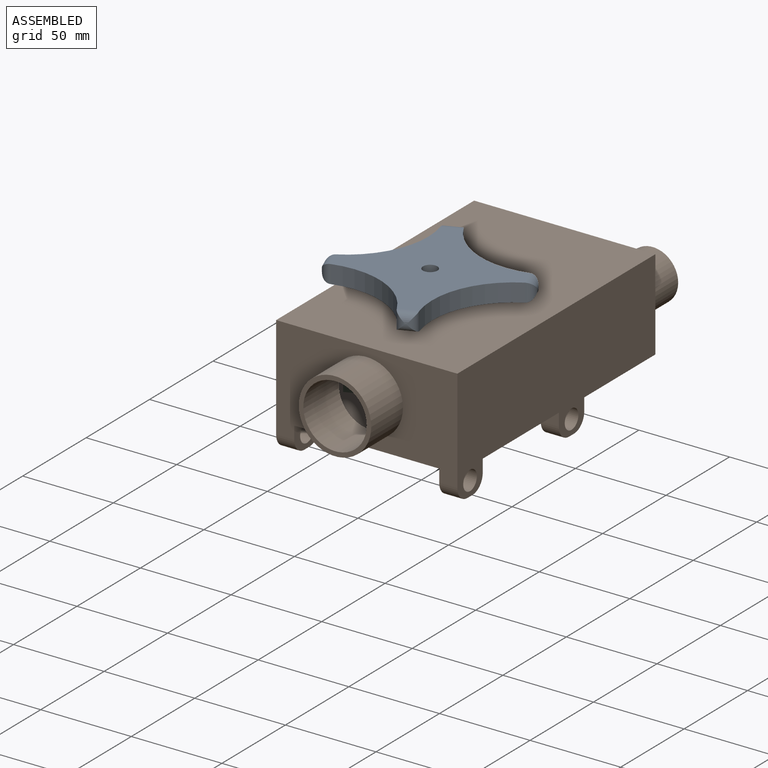
[diagram: assembled view]
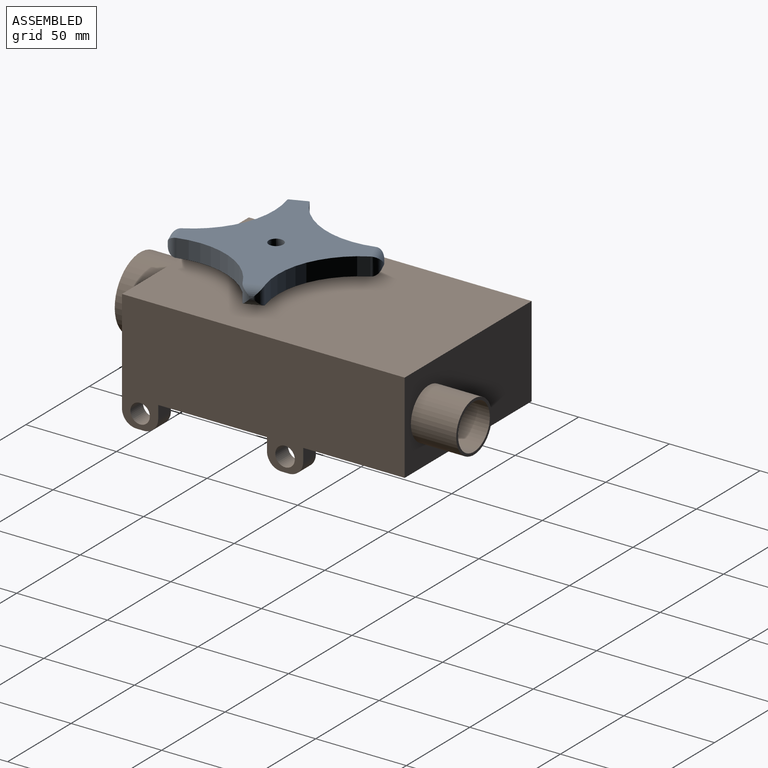
[diagram: assembled view, second angle]
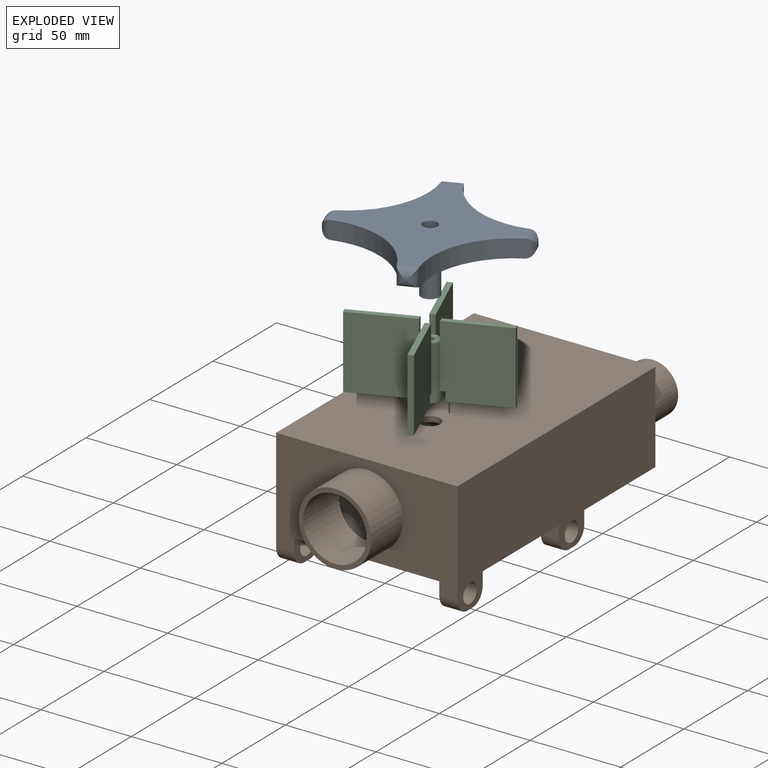
[diagram: exploded view]
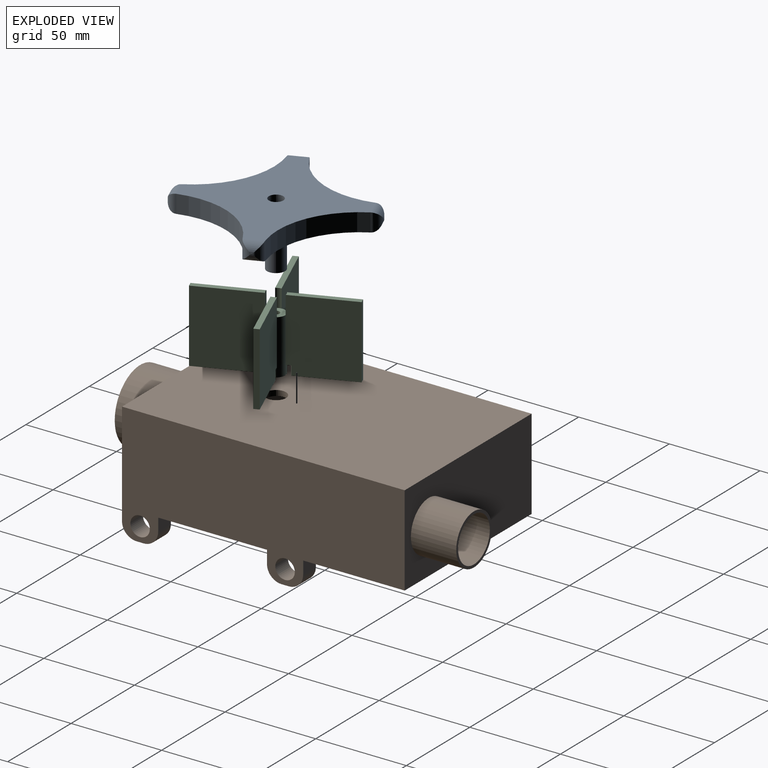
[diagram: exploded view, second angle]
ASSEMBLY  parts=3 mates=2
PART A: 23 faces, bbox 100x100x35 mm
  f0: plane 90x90mm, normal (0,0,-1), area 3356mm2, adj f1,f2,f3,f4,f10,f13,f16,f19
  f1: cylinder r=45mm len=40.27mm, axis (0,0,-1), area 616.7mm2, adj f0,f5,f10,f11,f13,f14
  f2: cylinder r=45mm len=40.27mm, axis (0,0,-1), area 616.7mm2, adj f0,f5,f12,f13,f16,f17
  f3: cylinder r=45mm len=40.27mm, axis (0,0,-1), area 616.7mm2, adj f0,f5,f15,f16,f19,f20
  f4: cylinder r=45mm len=40.27mm, axis (0,0,-1), area 616.7mm2, adj f0,f5,f9,f10,f18,f19
  f5: plane 90x90mm, normal (0,0,1), area 3384.3mm2, adj f1,f2,f3,f4,f7,f10,f13,f16
  f6: cylinder r=2mm len=30mm, axis (0,0,1), area 377mm2, adj f8,f22
  f7: cylinder r=4mm len=8mm, axis (0,0,1), area 125.7mm2, adj f5,f8
  f8: plane 8x8mm, normal (0,0,1), area 37.7mm2, adj f6,f7
  f9: cylinder r=5mm len=9.95mm, axis (0,0,-1), area 45mm2, adj f4,f10
  f10: cylinder r=5mm len=10.56mm, axis (1,0,0), area 107.9mm2, adj f0,f1,f4,f5,f9,f11
  f11: cylinder r=5mm len=9.95mm, axis (0,0,-1), area 45mm2, adj f1,f10
  f12: cylinder r=5mm len=9.95mm, axis (0,0,-1), area 45mm2, adj f2,f13
  f13: cylinder r=5mm len=10.56mm, axis (0,1,0), area 107.9mm2, adj f0,f1,f2,f5,f12,f14
  f14: cylinder r=5mm len=9.95mm, axis (0,0,-1), area 45mm2, adj f1,f13
  f15: cylinder r=5mm len=9.95mm, axis (0,0,-1), area 45mm2, adj f3,f16
  f16: cylinder r=5mm len=10.56mm, axis (-1,0,0), area 107.9mm2, adj f0,f2,f3,f5,f15,f17
  f17: cylinder r=5mm len=9.95mm, axis (0,0,-1), area 45mm2, adj f2,f16
  f18: cylinder r=5mm len=9.95mm, axis (0,0,-1), area 45mm2, adj f4,f19
  f19: cylinder r=5mm len=10.56mm, axis (0,-1,0), area 107.9mm2, adj f0,f3,f4,f5,f18,f20
  f20: cylinder r=5mm len=9.95mm, axis (0,0,-1), area 45mm2, adj f3,f19
  f21: cylinder r=5mm len=25mm, axis (0,0,1), area 785.4mm2, adj f0,f22
  f22: plane 10x10mm, normal (0,0,-1), area 66mm2, adj f6,f21
PART B: 58 faces, bbox 100x206x65 mm
  f0: plane 75.5x44mm, normal (1,0,0), area 3322mm2, adj f1,f2,f10,f56
  f1: plane 97x94mm, normal (0,0,-1), area 8833.1mm2, adj f0,f10,f11,f13,f43,f56,f57
  f2: plane 97x94mm, normal (0,0,1), area 8774.2mm2, adj f0,f10,f11,f41,f43,f56,f57
  f3: plane 10x7mm, normal (0,1,0), area 70mm2, adj f7,f9,f17,f39
  f4: plane 10x7mm, normal (0,1,0), area 70mm2, adj f5,f9,f20,f38
  f5: plane 156x65mm, normal (-1,0,0), area 8163.7mm2, adj f4,f6,f8,f9,f21,f22,f24,f25
  f6: plane 100x57mm, normal (0,-1,0), area 3883.4mm2, adj f5,f7,f8,f9,f15,f23,f26,f34
  f7: plane 156x65mm, normal (1,0,0), area 8163.7mm2, adj f3,f6,f8,f9,f18,f19,f27,f28
  f8: plane 156x100mm, normal (0,0,1), area 15505mm2, adj f5,f6,f7,f13,f51
  f9: plane 156x100mm, normal (0,0,-1), area 14705mm2, adj f3,f4,f5,f6,f7,f12,f17,f18
  f10: plane 94x44mm, normal (0,1,0), area 3173.9mm2, adj f0,f1,f2,f11,f14
  f11: plane 97x44mm, normal (-1,0,0), area 4268mm2, adj f1,f2,f10,f43
  f12: cylinder r=5.5mm len=11mm, axis (0,0,1), area 207.3mm2, adj f9,f42
  f13: cylinder r=5.5mm len=11mm, axis (0,0,1), area 103.7mm2, adj f1,f8
  f14: cylinder r=17.5mm len=35mm, axis (0,1,0), area 3078.8mm2, adj f10,f16
  f15: cylinder r=20mm len=40mm, axis (0,1,0), area 3141.6mm2, adj f6,f16
  f16: plane 40x40mm, normal (0,-1,0), area 294.5mm2, adj f14,f15
  f17: plane 20x15mm, normal (-1,0,0), area 181.8mm2, adj f3,f9,f18,f19,f32,f39,f40
  f18: plane 10x7mm, normal (0,-1,0), area 70mm2, adj f7,f9,f17,f40
  f19: plane 10x4mm, normal (0,0,-1), area 40mm2, adj f7,f17,f39,f40
  f20: plane 20x15mm, normal (1,0,0), area 181.8mm2, adj f4,f9,f21,f22,f31,f37,f38
  f21: plane 10x7mm, normal (0,-1,0), area 70mm2, adj f5,f9,f20,f37
  f22: plane 10x4mm, normal (0,0,-1), area 40mm2, adj f5,f20,f37,f38
  f23: plane 20x15mm, normal (1,0,0), area 181.8mm2, adj f6,f9,f24,f25,f30,f35,f36
  f24: plane 10x7mm, normal (0,1,0), area 70mm2, adj f5,f9,f23,f36
  f25: plane 10x4mm, normal (0,0,-1), area 40mm2, adj f5,f23,f35,f36
  f26: plane 20x15mm, normal (-1,0,0), area 181.8mm2, adj f6,f9,f27,f28,f29,f33,f34
  f27: plane 10x7mm, normal (0,1,0), area 70mm2, adj f7,f9,f26,f33
  f28: plane 10x4mm, normal (0,0,-1), area 40mm2, adj f7,f26,f33,f34
  f29: cylinder r=5.37mm len=10.75mm, axis (1,0,0), area 337.6mm2, adj f7,f26
  f30: cylinder r=5.37mm len=10.75mm, axis (1,0,0), area 337.6mm2, adj f5,f23
  f31: cylinder r=5.37mm len=10.75mm, axis (1,0,0), area 337.6mm2, adj f5,f20
  f32: cylinder r=5.37mm len=10.75mm, axis (1,0,0), area 337.6mm2, adj f7,f17
  f33: cylinder r=8mm len=10mm, axis (-1,0,0), area 125.7mm2, adj f7,f26,f27,f28
  f34: cylinder r=8mm len=10mm, axis (-1,0,0), area 125.7mm2, adj f6,f7,f26,f28
  f35: cylinder r=8mm len=10mm, axis (-1,0,0), area 125.7mm2, adj f5,f6,f23,f25
  f36: cylinder r=8mm len=10mm, axis (-1,0,0), area 125.7mm2, adj f5,f23,f24,f25
  f37: cylinder r=8mm len=10mm, axis (1,0,0), area 125.7mm2, adj f5,f20,f21,f22
  f38: cylinder r=8mm len=10mm, axis (1,0,0), area 125.7mm2, adj f4,f5,f20,f22
  f39: cylinder r=8mm len=10mm, axis (1,0,0), area 125.7mm2, adj f3,f7,f17,f19
  f40: cylinder r=8mm len=10mm, axis (1,0,0), area 125.7mm2, adj f7,f17,f18,f19
  f41: cylinder r=7mm len=14mm, axis (0,0,-1), area 131.9mm2, adj f2,f42
  f42: plane 14x14mm, normal (0,0,1), area 58.9mm2, adj f12,f41
  f43: plane 88.79x44mm, normal (0,-1,0), area 3420mm2, adj f1,f2,f11,f49,f57
  f44: plane 49.2x44mm, normal (1,0,0), area 2164.6mm2, adj f45,f47,f48,f50
  f45: plane 94x49.2mm, normal (0,0,1), area 3440.6mm2, adj f44,f46,f48,f50
  f46: plane 44x24.01mm, normal (-1,0,0), area 1056.4mm2, adj f45,f47,f48,f50
  f47: plane 94x49.2mm, normal (0,0,-1), area 3440.6mm2, adj f44,f46,f48,f50
  f48: plane 94x44mm, normal (-0.26,0.97,0), area 3773.7mm2, adj f44,f45,f46,f47,f49
  f49: cylinder r=12.5mm len=25mm, axis (0,1,0), area 656.5mm2, adj f43,f48,f55
  f50: plane 94x44mm, normal (0,-1,0), area 3645.1mm2, adj f44,f45,f46,f47,f52
  f51: plane 100x50mm, normal (0,1,0), area 4384.2mm2, adj f5,f7,f8,f9,f53
  f52: cylinder r=12.5mm len=28mm, axis (0,-1,0), area 2199.1mm2, adj f50,f54
  f53: cylinder r=14mm len=28mm, axis (0,-1,0), area 2199.1mm2, adj f51,f54
  f54: plane 28x28mm, normal (0,1,0), area 124.9mm2, adj f52,f53
  f55: plane 8.28x0.71mm, normal (0,1,0), area 3.9mm2, adj f49,f57
  f56: plane 44x12.46mm, normal (0,-1,0), area 548.2mm2, adj f0,f1,f2,f57
  f57: plane 44x21.5mm, normal (0.95,0.32,0), area 998.4mm2, adj f1,f2,f43,f55,f56
PART C: 36 faces, bbox 80x80x40 mm
  f0: plane 32.65x3mm, normal (0,0,-1), area 97.7mm2, adj f17,f18,f19,f31
  f1: plane 32.65x3mm, normal (0,0,-1), area 97.7mm2, adj f12,f13,f14,f33
  f2: plane 32.65x3mm, normal (0,0,-1), area 97.7mm2, adj f5,f7,f8,f34
  f3: plane 32.65x3mm, normal (0,0,-1), area 97.7mm2, adj f21,f23,f24,f29
  f4: plane 10x10mm, normal (0,0,-1), area 66mm2, adj f10,f27
  f5: plane 40x35.23mm, normal (-1,0,0), area 1396.3mm2, adj f2,f6,f8,f9,f10,f34,f35
  f6: cylinder r=5mm len=10mm, axis (0,0,-1), area 30.5mm2, adj f5,f7,f9,f26
  f7: plane 40x35.23mm, normal (1,0,0), area 1396.3mm2, adj f2,f6,f8,f9,f10,f34,f35
  f8: plane 40x3mm, normal (0,1,0), area 120mm2, adj f2,f5,f7,f9
  f9: plane 35.23x3mm, normal (0,0,1), area 105.2mm2, adj f5,f6,f7,f8
  f10: cylinder r=5mm len=30mm, axis (0,0,-1), area 637.8mm2, adj f4,f5,f7,f12,f14,f17,f19,f21
  f11: cylinder r=5mm len=10mm, axis (0,0,-1), area 30.5mm2, adj f12,f14,f15,f26
  f12: plane 40x35.23mm, normal (0,1,0), area 1396.3mm2, adj f1,f10,f11,f13,f15,f32,f33
  f13: plane 40x3mm, normal (-1,0,0), area 120mm2, adj f1,f12,f14,f15
  f14: plane 40x35.23mm, normal (0,-1,0), area 1396.3mm2, adj f1,f10,f11,f13,f15,f32,f33
  f15: plane 35.23x3mm, normal (0,0,1), area 105.2mm2, adj f11,f12,f13,f14
  f16: cylinder r=5mm len=10mm, axis (0,0,-1), area 30.5mm2, adj f17,f19,f20,f26
  f17: plane 40x35.23mm, normal (-1,0,0), area 1396.3mm2, adj f0,f10,f16,f18,f20,f30,f31
  f18: plane 40x3mm, normal (0,-1,0), area 120mm2, adj f0,f17,f19,f20
  f19: plane 40x35.23mm, normal (1,0,0), area 1396.3mm2, adj f0,f10,f16,f18,f20,f30,f31
  f20: plane 35.23x3mm, normal (0,0,1), area 105.2mm2, adj f16,f17,f18,f19
  f21: plane 40x35.23mm, normal (0,1,0), area 1396.3mm2, adj f3,f10,f22,f24,f25,f28,f29
  f22: cylinder r=5mm len=10mm, axis (0,0,-1), area 30.5mm2, adj f21,f23,f25,f26
  f23: plane 40x35.23mm, normal (0,-1,0), area 1396.3mm2, adj f3,f10,f22,f24,f25,f28,f29
  f24: plane 40x3mm, normal (1,0,0), area 120mm2, adj f3,f21,f23,f25
  f25: plane 35.23x3mm, normal (0,0,1), area 105.2mm2, adj f21,f22,f23,f24
  f26: plane 10x10mm, normal (0,0,1), area 66mm2, adj f6,f10,f11,f16,f22,f27
  f27: cylinder r=2mm len=30mm, axis (0,0,1), area 377mm2, adj f4,f26
  f28: plane 3x2.73mm, normal (0,0,-1), area 7.6mm2, adj f10,f21,f23,f29
  f29: cylinder r=7.5mm len=5mm, axis (0,0,-1), area 15.1mm2, adj f3,f21,f23,f28
  f30: plane 3x2.73mm, normal (0,0,-1), area 7.6mm2, adj f10,f17,f19,f31
  f31: cylinder r=7.5mm len=5mm, axis (0,0,-1), area 15.1mm2, adj f0,f17,f19,f30
  f32: plane 3x2.73mm, normal (0,0,-1), area 7.6mm2, adj f10,f12,f14,f33
  f33: cylinder r=7.5mm len=5mm, axis (0,0,-1), area 15.1mm2, adj f1,f12,f14,f32
  f34: cylinder r=7.5mm len=5mm, axis (0,0,-1), area 15.1mm2, adj f2,f5,f7,f35
  f35: plane 3x2.73mm, normal (0,0,-1), area 7.6mm2, adj f5,f7,f10,f34
PLACE A rot(axis=(0,0,1),112.2deg) t=(-47.16,10.08,63.84)mm
PLACE B t=(-47.16,10.08,3.84)mm fixed
PLACE C rot(axis=(0,0,1),112.2deg) t=(-47.16,10.08,8.84)mm
MATE fastened C.f6 <-> A.f6  axis (0,0,1) through (-47.16,10.08,38.84)mm
MATE revolute C.f6 <-> B.f12  axis (0,0,-1) through (-47.16,10.08,8.84)mm
